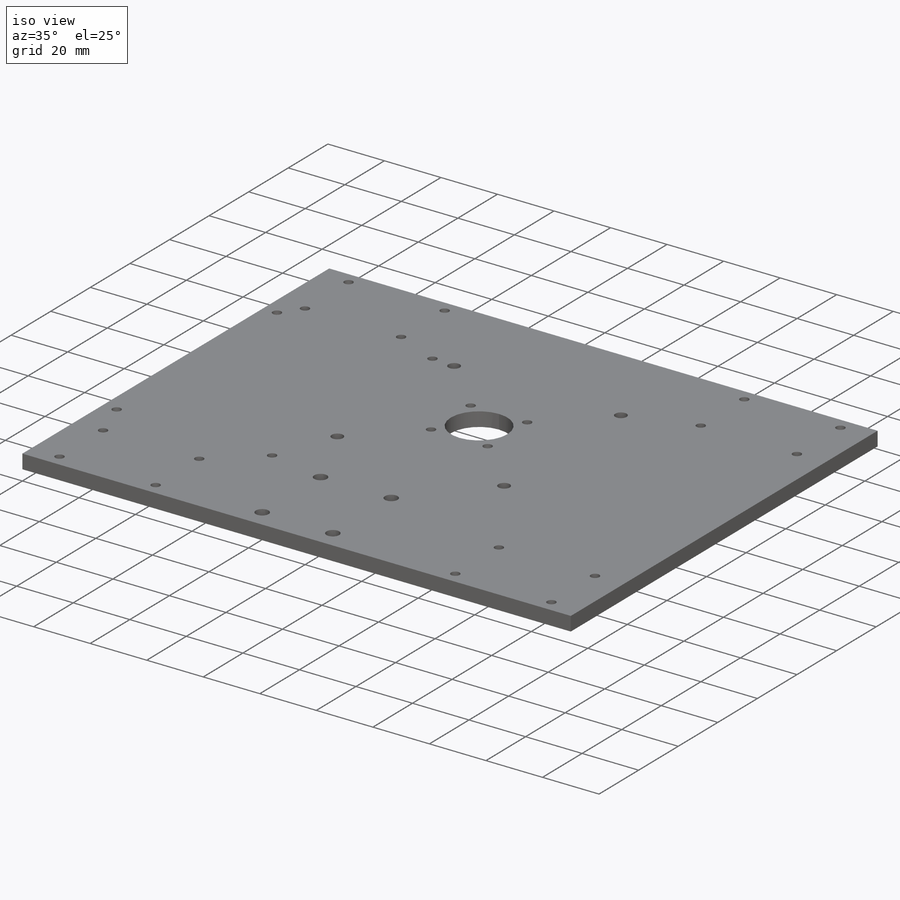
[diagram: iso view]
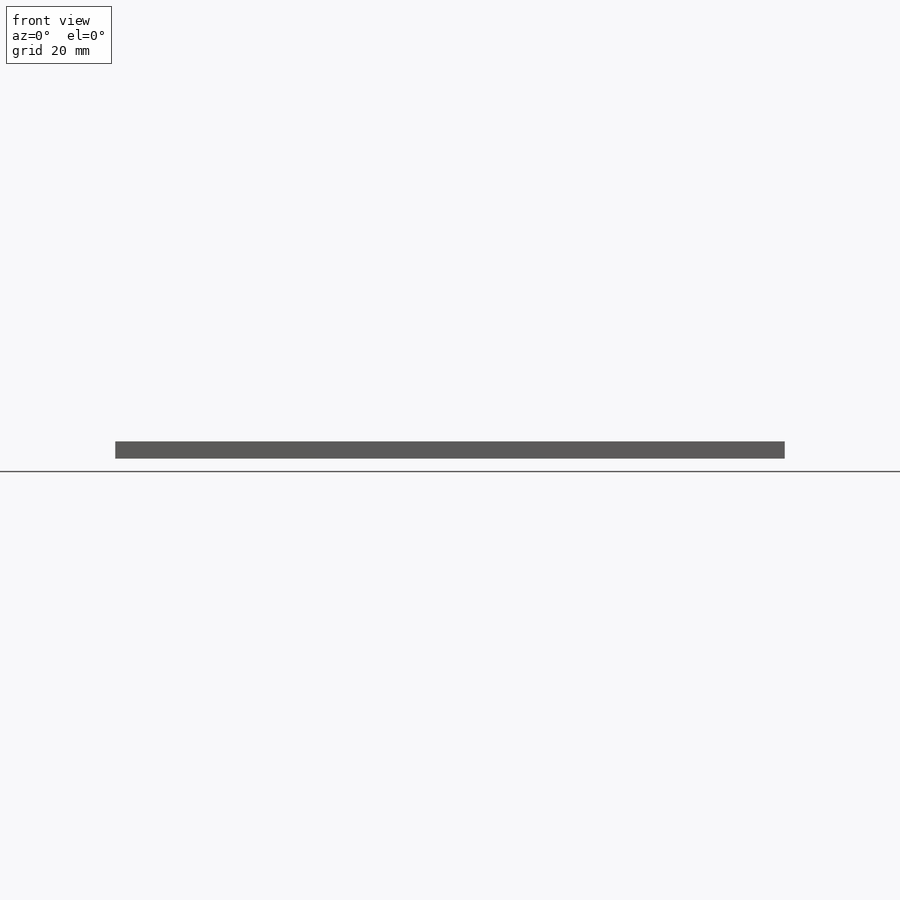
[diagram: front view]
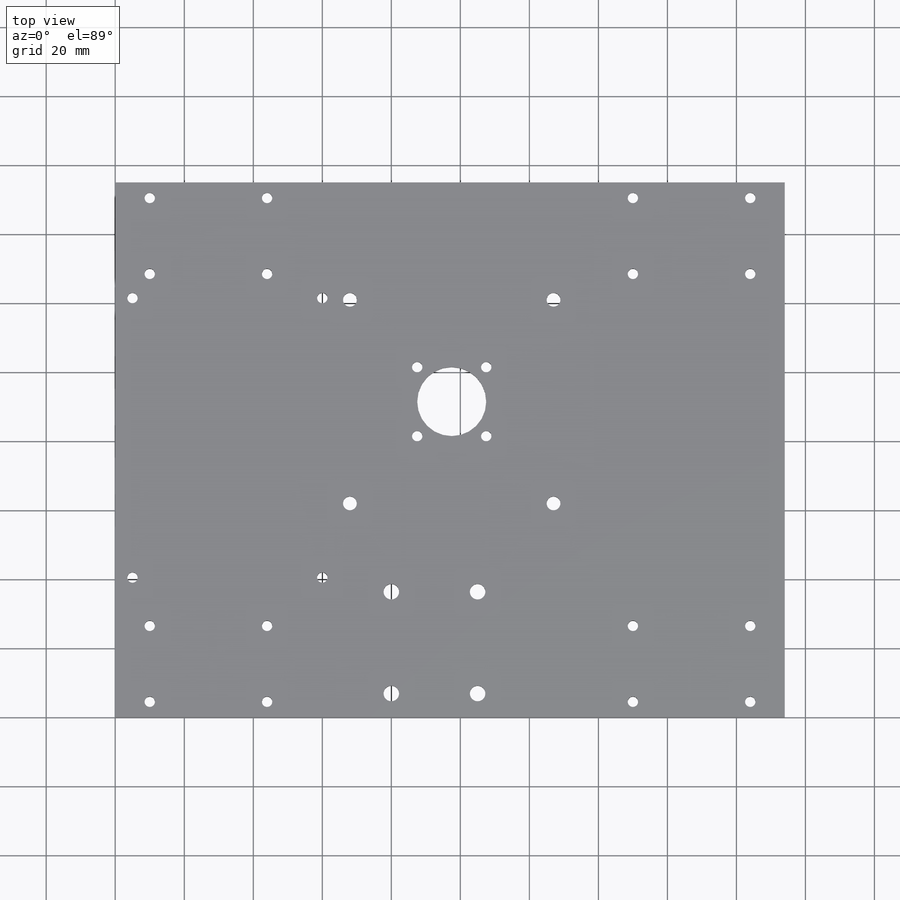
[diagram: top view]
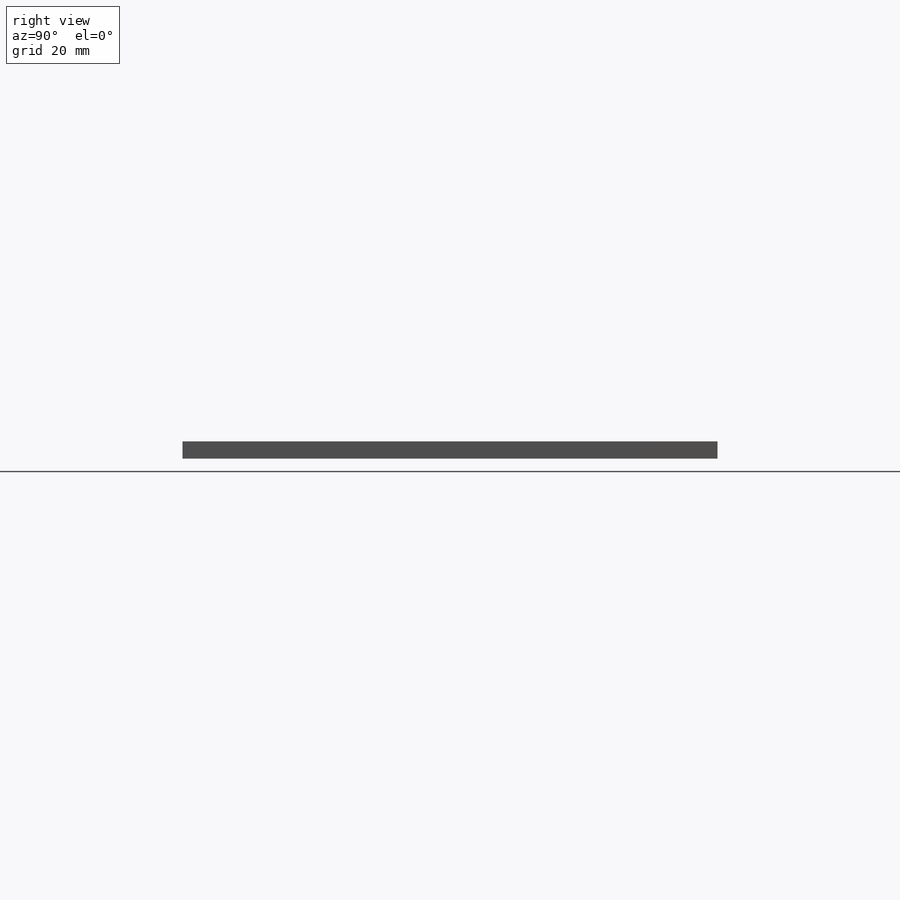
[diagram: right view]
SOLIDWORKS PART (.sldprt)
format: sldprt  version: not decoded by parser v0  size: 318,464 bytes
history: native  units: mm
features: sketch x6, cut_extrude x5, material x1, extrude x1 (+12 scaffold rows collapsed)
feature tree (25):
  scaffold x12  (default folders/planes/origin — collapsed)
  material  "Material <not specified>"
  sketch  "Sketch1"  dims[D1=155.0mm D2=194.0mm]
  extrude  "Boss-Extrude1"  Depth=5mm
  sketch  "Sketch2"  dims[c1.D4=4.0mm c1.D5=4.0mm c1.D8=4.0mm c1.D1=59.0mm c1.D2=29.0mm c1.D6=62.0mm c1.D7=59.0mm c2.D8=49.0mm c3.D8=90.0deg c3.D3=2.0]
  cut_extrude  "Cut-Extrude1"  [1 undecoded]
  sketch  "Sketch3"  dims[c1.D3=20.0mm c1.D5=3.0mm c1.D4=3.0mm c1.D8=3.0mm c1.D9=3.0mm c1.D1=89.0mm c1.D2=99.0mm c2.D4=20.0mm c2.D5=14.0mm c3.D4=~9.899495mm c3.D1=29.5mm c3.D2=29.5mm c3.D5=14.0mm c4.D4=20.0mm c4.D5=10.0mm c4.D6=10.0mm c4.D7=10.0mm c4.D9=~18.29899mm c4.D1=90.0deg]
  cut_extrude  "Cut-Extrude2"  [1 undecoded]
  sketch  "Sketch4"  dims[c1.D1=4.5mm c1.D2=76.75mm c1.D3=30.5mm c1.D5=3.5mm c2.D3=29.5mm c2.D2=80.0mm c3.D3=29.5mm c3.D4=25.0mm]
  cut_extrude  "Cut-Extrude3"  [1 undecoded]
  sketch  "Sketch5"  dims[D1=3.0mm D2=4.5mm D3=10.0mm D4=34.0mm D5=22.0mm D8=10.0mm D9=4.5mm D10=10.0mm D11=4.5mm D12=10.0mm D6=2.0 D7=2.0]
  cut_extrude  "Cut-Extrude4"  [1 undecoded]
  sketch  "Sketch6"  dims[D1=3.0mm D2=5.0mm D3=33.5mm D4=55.0mm D5=81.0mm]
  cut_extrude  "Cut-Extrude5"  [1 undecoded]
decode coverage: 7 of 12 modeling features carry decoded parameters
note: ~ marks probable driven/reference dimensions
note: 5 parameter values undecoded
summary: no parameter record found for 5 features
note: suppression state not decoded; provenance and decode notes live in map.json
